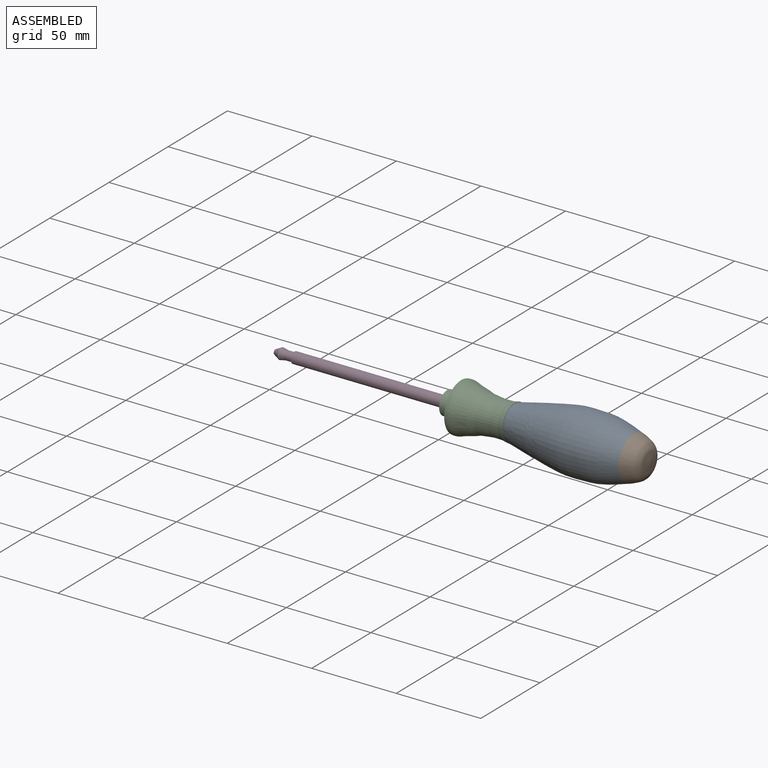
[diagram: assembled view]
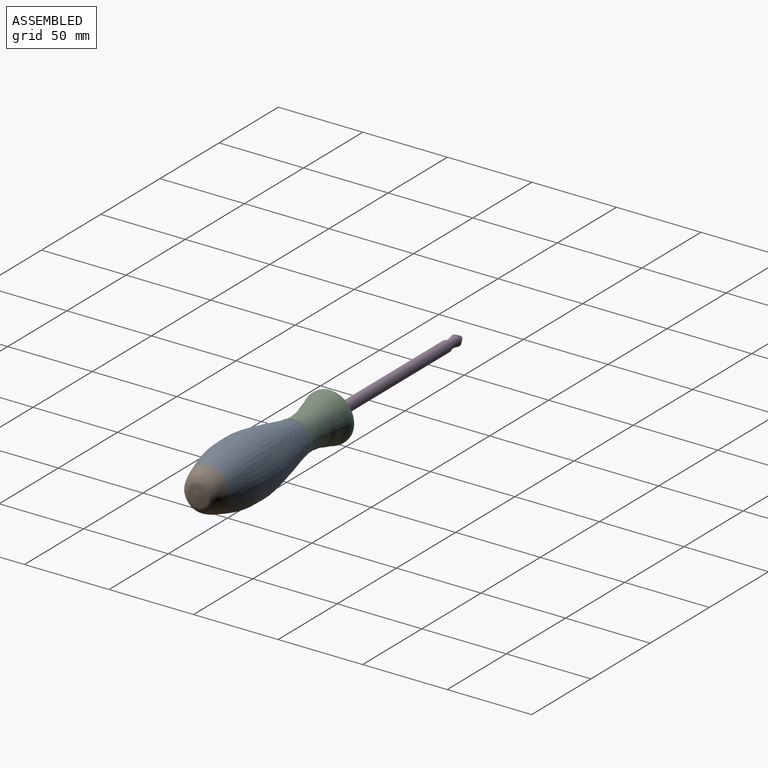
[diagram: assembled view, second angle]
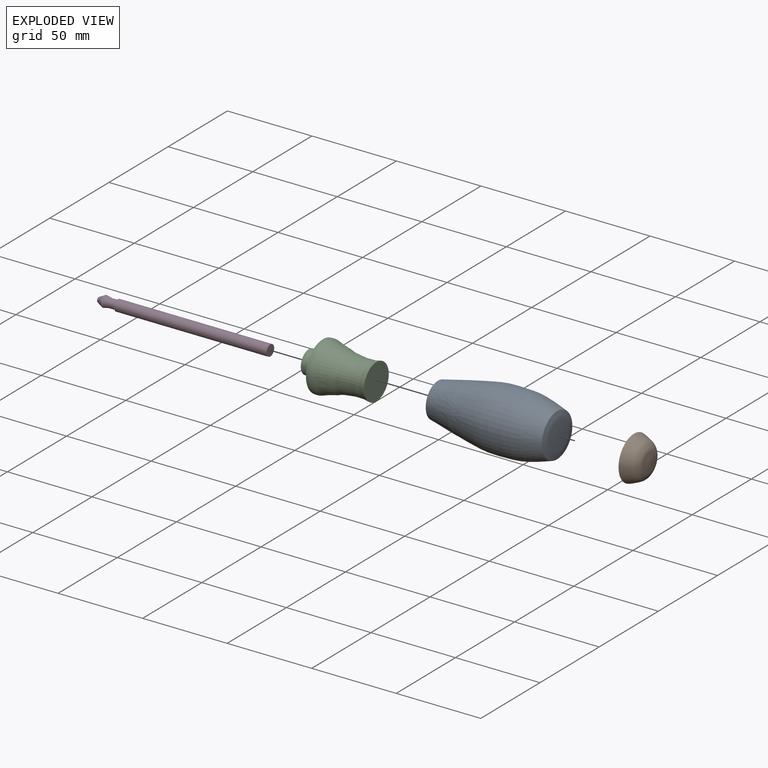
[diagram: exploded view]
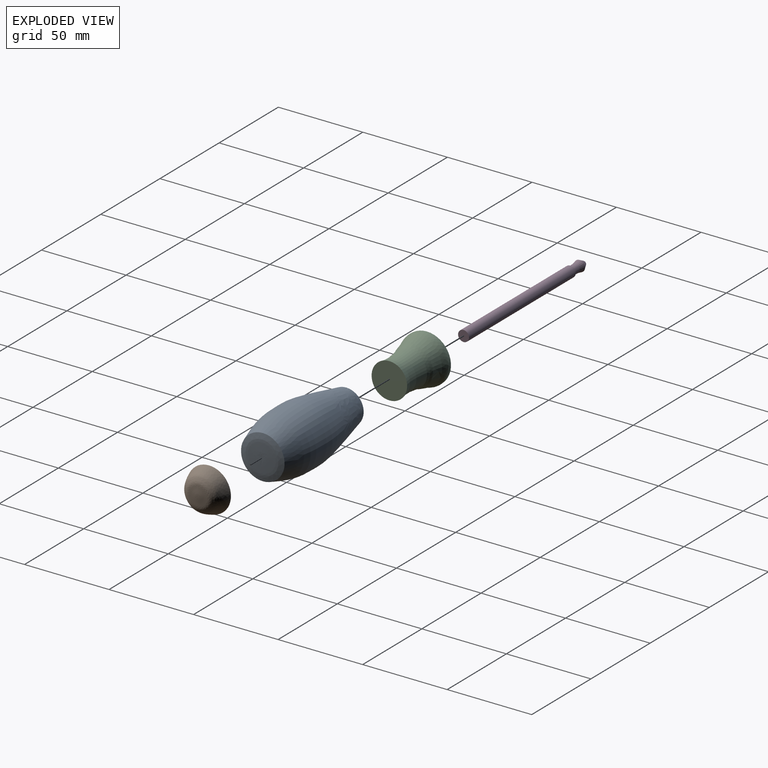
[diagram: exploded view, second angle]
ASSEMBLY  parts=4 mates=3
PART A: 3 faces, bbox 71.5x35.4x35.4 mm
  f0: plane 20.59x20.59mm, normal (-1,0,0), area 333.1mm2, adj f1
  f1: revolved ~70.5x35.41mm, area 6895.1mm2, adj f0,f2
  f2: revolved ~25.79x25.79mm, area 528.8mm2, adj f1
PART B: 2 faces, bbox 9.6x25.9x25.9 mm
  f0: revolved ~25.88x25.88mm, area 892.7mm2, adj f1
  f1: revolved ~25.88x25.88mm, area 529.7mm2, adj f0
PART C: 5 faces, bbox 40x28.7x28.7 mm
  f0: cylinder r=6.76mm len=13.53mm, axis (-1,0,0), area 259.9mm2, adj f1,f4
  f1: plane 13.53x13.53mm, normal (-1,0,0), area 143.7mm2, adj f0
  f2: plane 21.03x21.03mm, normal (1,0,0), area 347.3mm2, adj f3
  f3: revolved ~31.68x28.68mm, area 2306.9mm2, adj f2,f4
  f4: cone r=6.76mm half-angle=74deg, axis (1,0,0), area 515mm2, adj f0,f3
PART D: 7 faces, bbox 101.6x6.5x6.5 mm
  f0: plane 2.78x2.78mm, normal (-1,0,0), area 6.1mm2, adj f6
  f1: plane 6.46x6.46mm, normal (1,0,0), area 32.8mm2, adj f2
  f2: cylinder r=3.23mm len=90.18mm, axis (-1,0,0), area 1829.6mm2, adj f1,f3
  f3: plane 6.46x6.46mm, normal (-1,0,0), area 12.4mm2, adj f2,f4
  f4: cylinder r=2.55mm len=5.09mm, axis (-1,0,0), area 73.1mm2, adj f3,f5
  f5: cone r=3.23mm half-angle=11.8deg, axis (-1,0,0), area 60.7mm2, adj f4,f6
  f6: cone r=1.39mm half-angle=27.4deg, axis (1,0,0), area 57.9mm2, adj f0,f5
PLACE A t=(-68.44,0,-35.18)mm
PLACE B t=(-52.42,0,9.67)mm
PLACE C t=(-37.84,0,-35.2)mm
PLACE D t=(-93.67,0,-10.64)mm
MATE cylindrical B.f0 <-> A.f1  axis (-1,0,0) through (65.49,0,-2.05)mm
MATE cylindrical D.f2 <-> C.f0  axis (1,0,0) through (-44.97,0,-2.05)mm
MATE cylindrical A.f0 <-> C.f0  axis (-1,0,0) through (-5.01,0,-2.05)mm
